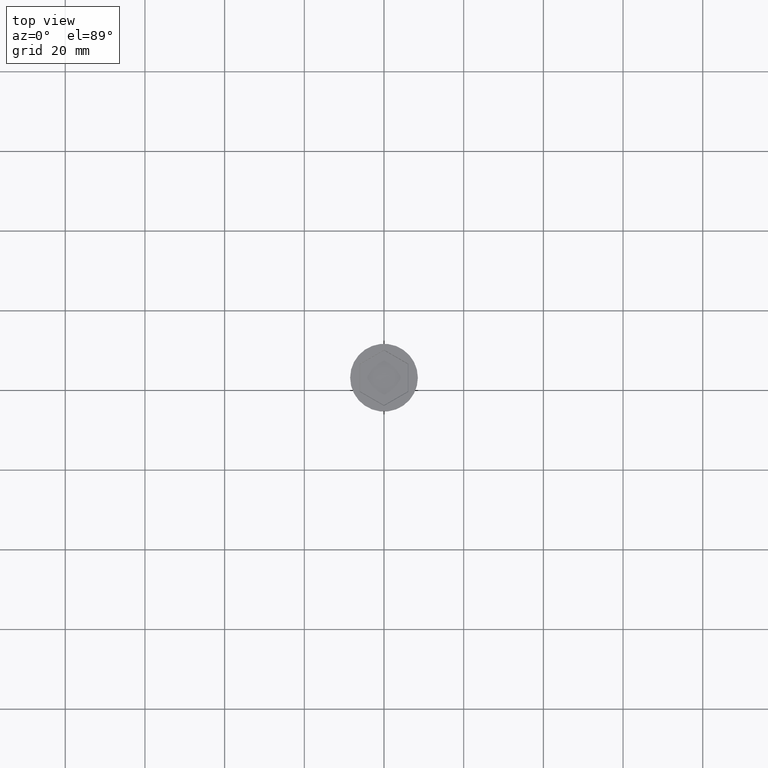
[diagram: clean part render]
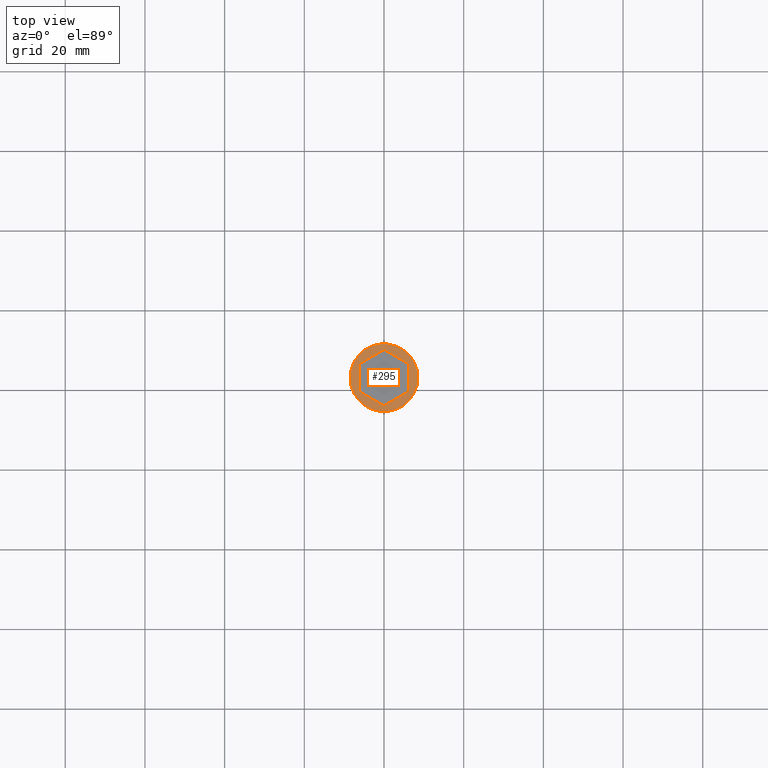
[diagram: same view with one face highlighted and labeled with its STEP entity id]
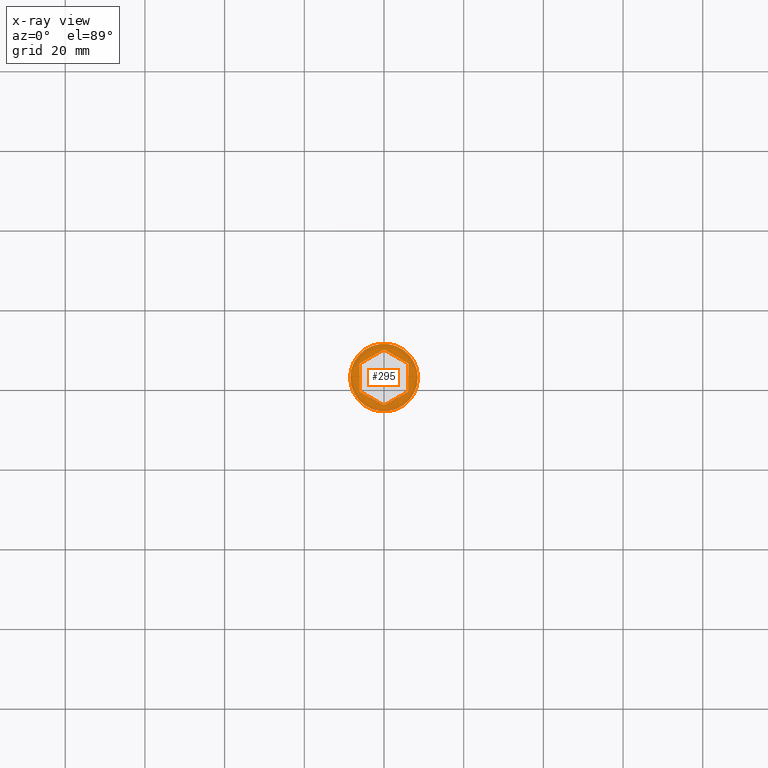
[diagram: x-ray of the same camera — body ghosted, the highlighted face saturated]
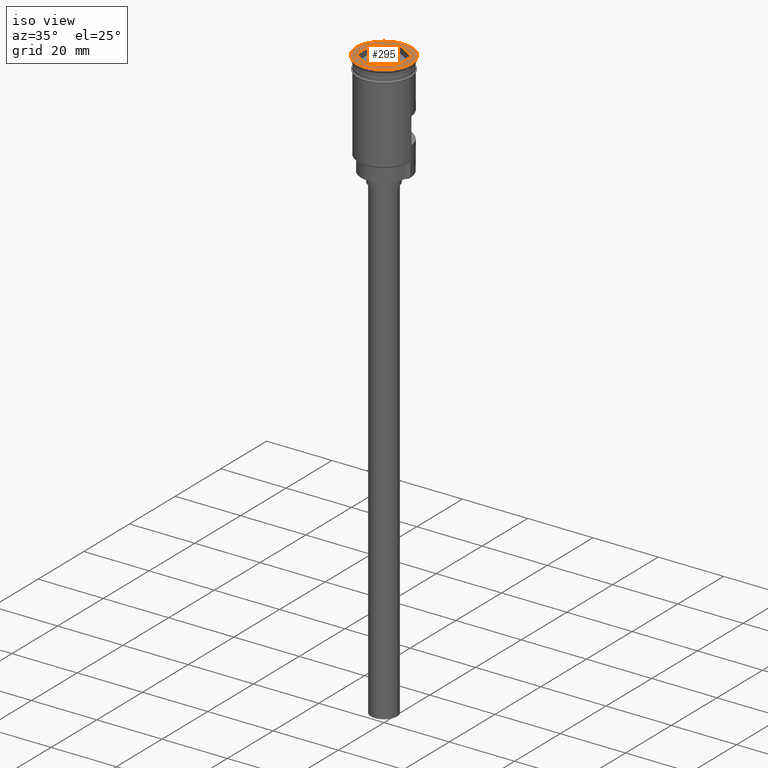
[diagram: same view with one face highlighted and labeled with its STEP entity id]
A machine part, top view. The second image highlights one B-rep face of the part: STEP entity #295.
The next image is the same camera in x-ray: the body ghosted, the highlighted face saturated — about 0% of this face is hidden behind the body in this view.
A second angle (iso view) of the same face is appended — the face is thin or edge-on in the first view.
In plain terms, the highlighted planar face has unit normal (0, -0, 1).
Its self-contained STEP definition (entity closure, byte-faithful):
#12 = DIRECTION ( 'NONE',  ( 0.8660254037844385966, 0.5000000000000002220, 0.000000000000000000 ) ) ;
#16 = DIRECTION ( 'NONE',  ( 0.8660254037844387076, -0.4999999999999998335, 0.000000000000000000 ) ) ;
#50 = EDGE_CURVE ( 'NONE', #1445, #1090, #72, .T. ) ;
#70 = ORIENTED_EDGE ( 'NONE', *, *, #1448, .T. ) ;
#72 = LINE ( 'NONE', #926, #1273 ) ;
#111 = ORIENTED_EDGE ( 'NONE', *, *, #1306, .T. ) ;
#214 = ORIENTED_EDGE ( 'NONE', *, *, #1308, .T. ) ;
#240 = CARTESIAN_POINT ( 'NONE',  ( 0.000000000000000000, 0.000000000000000000, 0.000000000000000000 ) ) ;
#253 = LINE ( 'NONE', #748, #366 ) ;
#295 = ADVANCED_FACE ( 'NONE', ( #1350, #1495 ), #1488, .T. ) ;
#312 = VECTOR ( 'NONE', #16, 1000.000000000000000 ) ;
#315 = CARTESIAN_POINT ( 'NONE',  ( -9.509961900721253228E-16, 7.043673284113440403, 0.000000000000000000 ) ) ;
#337 = EDGE_LOOP ( 'NONE', ( #985, #880 ) ) ;
#340 = AXIS2_PLACEMENT_3D ( 'NONE', #240, #976, #1112 ) ;
#366 = VECTOR ( 'NONE', #1245, 1000.000000000000000 ) ;
#368 = LINE ( 'NONE', #1229, #312 ) ;
#371 = LINE ( 'NONE', #1125, #1484 ) ;
#374 = CARTESIAN_POINT ( 'NONE',  ( 0.000000000000000000, 0.000000000000000000, 0.000000000000000000 ) ) ;
#384 = LINE ( 'NONE', #870, #1193 ) ;
#423 = CARTESIAN_POINT ( 'NONE',  ( 6.100000000000007638, 3.521836642056720201, 0.000000000000000000 ) ) ;
#431 = DIRECTION ( 'NONE',  ( -1.251928832280966188E-16, 1.000000000000000000, 0.000000000000000000 ) ) ;
#435 = CARTESIAN_POINT ( 'NONE',  ( 0.000000000000000000, 0.000000000000000000, 0.000000000000000000 ) ) ;
#508 = CARTESIAN_POINT ( 'NONE',  ( -6.100000000000007638, -3.521836642056722866, 0.000000000000000000 ) ) ;
#556 = LINE ( 'NONE', #1159, #803 ) ;
#560 = ORIENTED_EDGE ( 'NONE', *, *, #810, .T. ) ;
#564 = ORIENTED_EDGE ( 'NONE', *, *, #1182, .T. ) ;
#630 = CARTESIAN_POINT ( 'NONE',  ( 6.100000000000007638, -3.521836642056722866, 0.000000000000000000 ) ) ;
#650 = CIRCLE ( 'NONE', #340, 8.500000000000000000 ) ;
#748 = CARTESIAN_POINT ( 'NONE',  ( 6.100000000000007638, -3.464101615137756607, 0.000000000000000000 ) ) ;
#751 = CARTESIAN_POINT ( 'NONE',  ( 6.606856988583603042E-17, -7.043673284113445732, 0.000000000000000000 ) ) ;
#786 = CARTESIAN_POINT ( 'NONE',  ( 8.500000000000000000, 0.000000000000000000, 0.000000000000000000 ) ) ;
#803 = VECTOR ( 'NONE', #431, 1000.000000000000000 ) ;
#810 = EDGE_CURVE ( 'NONE', #1074, #1513, #556, .T. ) ;
#839 = VERTEX_POINT ( 'NONE', #315 ) ;
#861 = AXIS2_PLACEMENT_3D ( 'NONE', #435, #1274, #919 ) ;
#870 = CARTESIAN_POINT ( 'NONE',  ( -6.050000000000004263, -3.550704155516205773, 0.000000000000000000 ) ) ;
#880 = ORIENTED_EDGE ( 'NONE', *, *, #1287, .T. ) ;
#919 = DIRECTION ( 'NONE',  ( 1.000000000000000000, 0.000000000000000000, 0.000000000000000000 ) ) ;
#925 = CARTESIAN_POINT ( 'NONE',  ( -6.100000000000008527, 3.521836642056717537, 0.000000000000000000 ) ) ;
#926 = CARTESIAN_POINT ( 'NONE',  ( 0.05000000000000536654, -7.014805770653961048, 0.000000000000000000 ) ) ;
#955 = VERTEX_POINT ( 'NONE', #980 ) ;
#962 = AXIS2_PLACEMENT_3D ( 'NONE', #374, #1215, #1252 ) ;
#976 = DIRECTION ( 'NONE',  ( -0.000000000000000000, -0.000000000000000000, 1.000000000000000000 ) ) ;
#980 = CARTESIAN_POINT ( 'NONE',  ( -8.500000000000000000, 1.040949779275250140E-15, 0.000000000000000000 ) ) ;
#985 = ORIENTED_EDGE ( 'NONE', *, *, #1503, .T. ) ;
#1042 = CIRCLE ( 'NONE', #861, 8.500000000000000000 ) ;
#1058 = DIRECTION ( 'NONE',  ( -0.8660254037844385966, -0.5000000000000002220, 0.000000000000000000 ) ) ;
#1074 = VERTEX_POINT ( 'NONE', #508 ) ;
#1090 = VERTEX_POINT ( 'NONE', #751 ) ;
#1112 = DIRECTION ( 'NONE',  ( 1.000000000000000000, 0.000000000000000000, 0.000000000000000000 ) ) ;
#1125 = CARTESIAN_POINT ( 'NONE',  ( -0.05000000000000349998, 7.014805770653958383, 0.000000000000000000 ) ) ;
#1152 = EDGE_LOOP ( 'NONE', ( #560, #70, #564, #214, #1465, #111 ) ) ;
#1159 = CARTESIAN_POINT ( 'NONE',  ( -6.100000000000008527, 3.464101615137752166, 0.000000000000000000 ) ) ;
#1182 = EDGE_CURVE ( 'NONE', #839, #1560, #368, .T. ) ;
#1193 = VECTOR ( 'NONE', #1371, 999.9999999999998863 ) ;
#1215 = DIRECTION ( 'NONE',  ( 0.000000000000000000, -0.000000000000000000, 1.000000000000000000 ) ) ;
#1229 = CARTESIAN_POINT ( 'NONE',  ( 6.050000000000003375, 3.550704155516203553, 0.000000000000000000 ) ) ;
#1245 = DIRECTION ( 'NONE',  ( 0.000000000000000000, -1.000000000000000000, -0.000000000000000000 ) ) ;
#1252 = DIRECTION ( 'NONE',  ( 1.000000000000000000, 0.000000000000000000, 0.000000000000000000 ) ) ;
#1273 = VECTOR ( 'NONE', #1058, 999.9999999999998863 ) ;
#1274 = DIRECTION ( 'NONE',  ( -0.000000000000000000, -0.000000000000000000, 1.000000000000000000 ) ) ;
#1287 = EDGE_CURVE ( 'NONE', #955, #1498, #650, .T. ) ;
#1306 = EDGE_CURVE ( 'NONE', #1090, #1074, #384, .T. ) ;
#1308 = EDGE_CURVE ( 'NONE', #1560, #1445, #253, .T. ) ;
#1350 = FACE_BOUND ( 'NONE', #1152, .T. ) ;
#1371 = DIRECTION ( 'NONE',  ( -0.8660254037844385966, 0.5000000000000002220, 0.000000000000000000 ) ) ;
#1445 = VERTEX_POINT ( 'NONE', #630 ) ;
#1448 = EDGE_CURVE ( 'NONE', #1513, #839, #371, .T. ) ;
#1465 = ORIENTED_EDGE ( 'NONE', *, *, #50, .T. ) ;
#1484 = VECTOR ( 'NONE', #12, 999.9999999999998863 ) ;
#1488 = PLANE ( 'NONE',  #962 ) ;
#1495 = FACE_OUTER_BOUND ( 'NONE', #337, .T. ) ;
#1498 = VERTEX_POINT ( 'NONE', #786 ) ;
#1503 = EDGE_CURVE ( 'NONE', #1498, #955, #1042, .T. ) ;
#1513 = VERTEX_POINT ( 'NONE', #925 ) ;
#1560 = VERTEX_POINT ( 'NONE', #423 ) ;